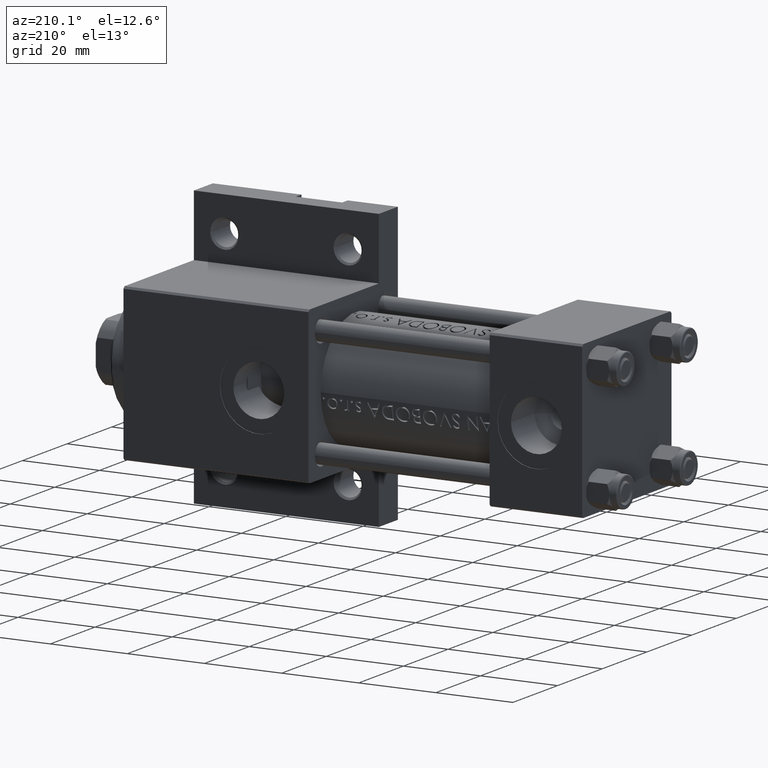
[diagram: clean part render]
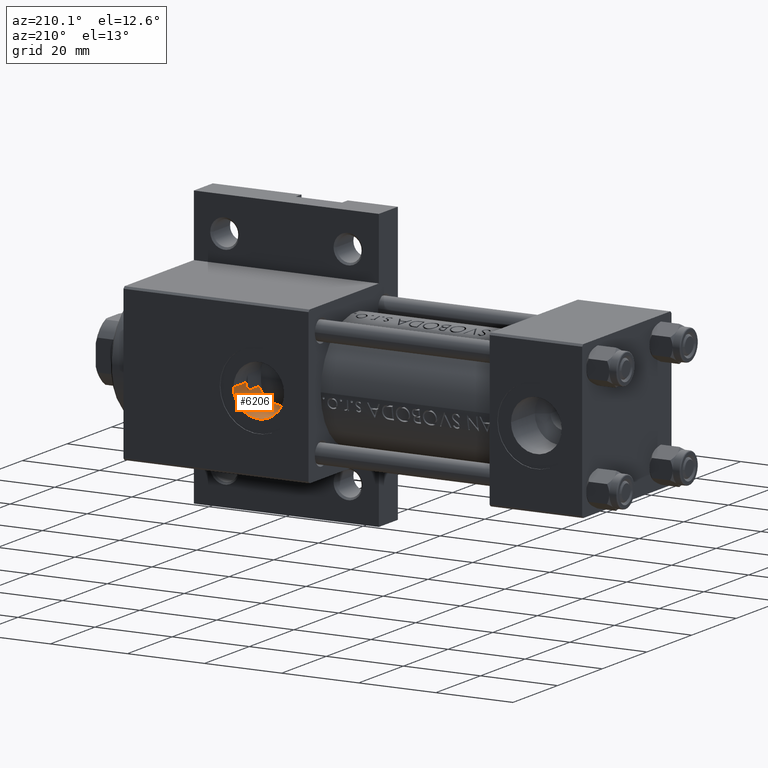
[diagram: same view with one face highlighted and labeled with its STEP entity id]
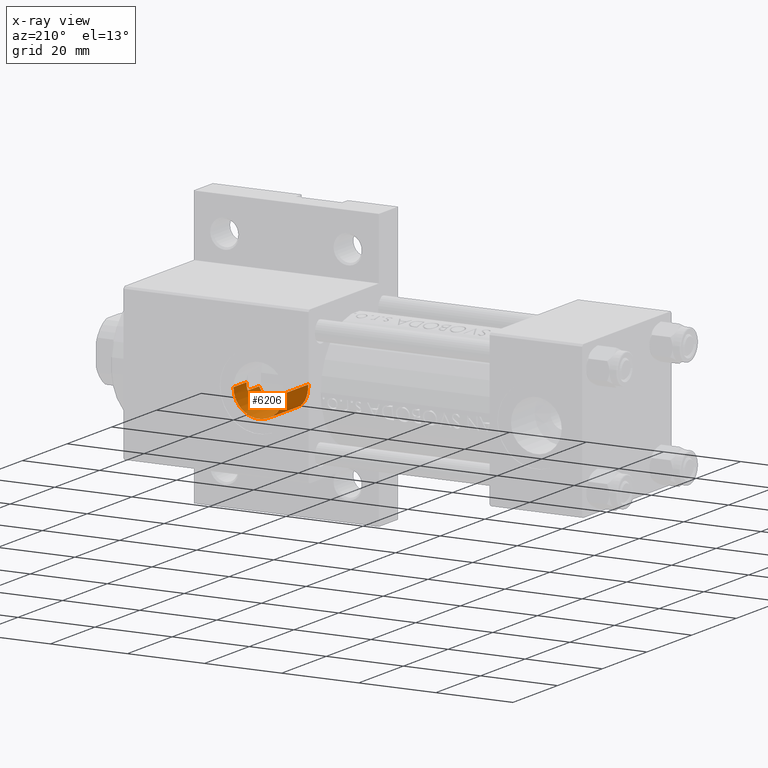
[diagram: x-ray of the same camera — body ghosted, the highlighted face saturated]
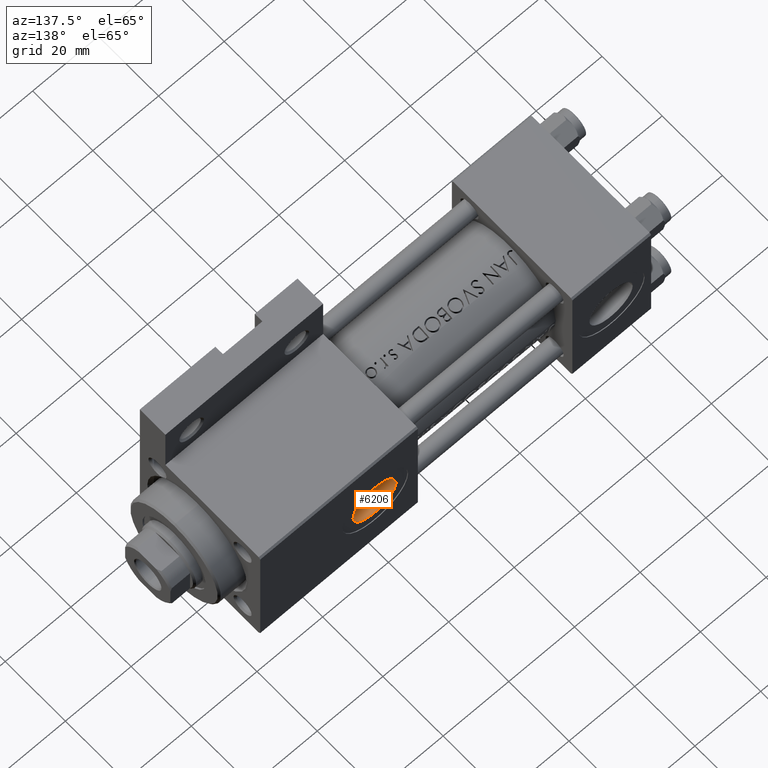
[diagram: same view with one face highlighted and labeled with its STEP entity id]
A machine part, auxiliary view. The second image highlights one B-rep face of the part: STEP entity #6206.
The next image is the same camera in x-ray: the body ghosted, the highlighted face saturated — about 0% of this face is hidden behind the body in this view.
A second angle (auxiliary view) of the same face is appended — the face is thin or edge-on in the first view.
In plain terms, the highlighted cylindrical surface (edge-blend (fillet) strip) has radius 6.58 mm, axis along (0, 1, 0).
Its self-contained STEP definition (entity closure, byte-faithful):
#124 = VERTEX_POINT ( 'NONE', #36950 ) ;
#1658 = VERTEX_POINT ( 'NONE', #41858 ) ;
#2013 = CARTESIAN_POINT ( 'NONE',  ( 86.92434068310684836, 5.907044672534585317, 7.071096920454997381 ) ) ;
#2209 = EDGE_CURVE ( 'NONE', #27909, #8641, #10185, .T. ) ;
#2496 = CARTESIAN_POINT ( 'NONE',  ( 81.15150766959025930, 5.943877247083118931, 7.044991576418467183 ) ) ;
#2721 = CARTESIAN_POINT ( 'NONE',  ( 89.01171256368644435, 4.281038711601305558, 8.043476487246559614 ) ) ;
#2968 = CARTESIAN_POINT ( 'NONE',  ( 77.45763783829498550, 0.8084208477571722673, 8.975121118623743399 ) ) ;
#3492 = DIRECTION ( 'NONE',  ( -0.000000000000000000, -0.000000000000000000, 1.000000000000000000 ) ) ;
#3887 = EDGE_CURVE ( 'NONE', #27909, #1658, #31897, .T. ) ;
#3893 = VECTOR ( 'NONE', #3492, 1000.000000000000000 ) ;
#4695 = CARTESIAN_POINT ( 'NONE',  ( 77.41999999999846693, 1.223796959402451711E-15, 8.999999999999998224 ) ) ;
#5130 = CARTESIAN_POINT ( 'NONE',  ( 84.00000000000000000, -1.734723475976806897E-15, 19.80000000000000071 ) ) ;
#5454 = LINE ( 'NONE', #19150, #31253 ) ;
#5610 = CARTESIAN_POINT ( 'NONE',  ( 78.91948560029507576, 4.185857250486424874, 8.083179932574976689 ) ) ;
#5839 = CARTESIAN_POINT ( 'NONE',  ( 82.64228046384748438, 6.441510615516905069, 6.649229527461431033 ) ) ;
#6085 = CARTESIAN_POINT ( 'NONE',  ( 85.64143006621840470, 6.375121249720387517, 6.704616833470071313 ) ) ;
#6206 = ADVANCED_FACE ( 'NONE', ( #27950 ), #9643, .F. ) ;
#6548 = CARTESIAN_POINT ( 'NONE',  ( 77.61241581301698034, 1.592248641449762525, 8.874366003595781649 ) ) ;
#7648 = CARTESIAN_POINT ( 'NONE',  ( 90.39284622331669539, 1.591040247564621257, 13.91861279833453935 ) ) ;
#7909 = EDGE_LOOP ( 'NONE', ( #8067, #28945, #16821, #26670, #23920, #25478 ) ) ;
#8067 = ORIENTED_EDGE ( 'NONE', *, *, #18791, .F. ) ;
#8115 = VERTEX_POINT ( 'NONE', #23155 ) ;
#8641 = VERTEX_POINT ( 'NONE', #4695 ) ;
#8961 = CIRCLE ( 'NONE', #32018, 6.580000000001542837 ) ;
#9643 = CYLINDRICAL_SURFACE ( 'NONE', #42242, 6.580000000001542837 ) ;
#9671 = CARTESIAN_POINT ( 'NONE',  ( 84.65744280686335799, 6.559709605006784017, 6.547889352008899877 ) ) ;
#10152 = CARTESIAN_POINT ( 'NONE',  ( 88.75695250607546427, 4.561896889324864368, 7.903678834413632615 ) ) ;
#10185 = B_SPLINE_CURVE_WITH_KNOTS ( 'NONE', 3,
 ( #43111, #13754, #24110, #46715, #46250, #2721, #10152, #38565, #27977, #23878, #39278, #20963, #2013, #38790, #13993, #42637, #6085, #28693, #9671, #16647, #42876, #46960, #35436, #27746, #5839, #24830, #35661, #31367, #2496, #46012, #17131, #46479, #17353, #5610, #42416, #13516, #28208, #32064, #28451, #39513, #21199, #6548, #35899, #2968, #22167, #39754 ),
 .UNSPECIFIED., .F., .F.,
 ( 4, 2, 2, 2, 2, 2, 2, 2, 2, 2, 2, 2, 2, 2, 2, 2, 2, 2, 2, 2, 2, 2, 4 ),
 ( 0.000000000000000000, 0.001207791230099373309, 0.002415582460198746617, 0.003623373690298120793, 0.004227269305347793570, 0.004831164920397465479, 0.006038956150496808430, 0.006642851765546497686, 0.007246747380596187810, 0.008454538610695606221, 0.009058434225745337978, 0.009662329840795068001, 0.01026622545584479802, 0.01087012107089452631, 0.01207791230099398809, 0.01328570353109344640, 0.01449349476119290471, 0.01509739037624264861, 0.01570128599129239078, 0.01690907722139185429, 0.01751297283644158778, 0.01811686845149132127, 0.01932465968159078479 ),
 .UNSPECIFIED. ) ;
#12774 = B_SPLINE_CURVE_WITH_KNOTS ( 'NONE', 3,
 ( #29325, #14622, #28832, #39902, #7648, #43968 ),
 .UNSPECIFIED., .F., .F.,
 ( 4, 2, 4 ),
 ( 0.001923267627926022365, 0.002881828648815652587, 0.003840389669705283025 ),
 .UNSPECIFIED. ) ;
#12880 = CARTESIAN_POINT ( 'NONE',  ( 90.30000000000001137, 1.899052395280416805, -18.61105048083429025 ) ) ;
#13516 = CARTESIAN_POINT ( 'NONE',  ( 78.57242859662288481, 3.724876030303978514, 8.281895439158068584 ) ) ;
#13754 = CARTESIAN_POINT ( 'NONE',  ( 90.18384735178129574, 2.284382302762959505, 8.743491762341795592 ) ) ;
#13993 = CARTESIAN_POINT ( 'NONE',  ( 86.21002104074251804, 6.200884946022786615, 6.845702732414582492 ) ) ;
#14451 = DIRECTION ( 'NONE',  ( 1.000000000000000000, 0.000000000000000000, 0.000000000000000000 ) ) ;
#14622 = CARTESIAN_POINT ( 'NONE',  ( 90.58000000000156149, 0.3230844264541329891, 13.99999999999999467 ) ) ;
#14840 = CARTESIAN_POINT ( 'NONE',  ( 90.58000000000154728, -1.734723475976806897E-15, 19.80000000000000071 ) ) ;
#15236 = CARTESIAN_POINT ( 'NONE',  ( 77.41999999999846693, -9.289058821376597120E-16, -18.61105048083429025 ) ) ;
#15929 = DIRECTION ( 'NONE',  ( 0.000000000000000000, 0.000000000000000000, 1.000000000000000000 ) ) ;
#16647 = CARTESIAN_POINT ( 'NONE',  ( 84.04743762832035259, 6.582974628388991611, 6.527585999843090292 ) ) ;
#16821 = ORIENTED_EDGE ( 'NONE', *, *, #3887, .T. ) ;
#16961 = DIRECTION ( 'NONE',  ( -0.000000000000000000, -0.000000000000000000, 1.000000000000000000 ) ) ;
#17131 = CARTESIAN_POINT ( 'NONE',  ( 80.16020215073049826, 5.356874842517147073, 7.448716332623804171 ) ) ;
#17353 = CARTESIAN_POINT ( 'NONE',  ( 79.29730408322325275, 4.618177244596265218, 7.875509752877484004 ) ) ;
#17556 = VECTOR ( 'NONE', #16961, 1000.000000000000000 ) ;
#18791 = EDGE_CURVE ( 'NONE', #8641, #124, #25840, .T. ) ;
#19150 = CARTESIAN_POINT ( 'NONE',  ( 90.58000000000154728, -1.734723475976806897E-15, -18.61105048083429025 ) ) ;
#20963 = CARTESIAN_POINT ( 'NONE',  ( 87.26053252520591741, 5.728070196491263921, 7.200680661955370709 ) ) ;
#21199 = CARTESIAN_POINT ( 'NONE',  ( 77.72104259078042787, 1.977670684214428931, 8.804446867313096448 ) ) ;
#21470 = EDGE_CURVE ( 'NONE', #8115, #1658, #12774, .T. ) ;
#22167 = CARTESIAN_POINT ( 'NONE',  ( 77.41999999999849535, 0.4081853129699607452, 9.000000000000007105 ) ) ;
#23155 = CARTESIAN_POINT ( 'NONE',  ( 90.58000000000154728, 1.837042777381032933E-15, 13.99999999999999822 ) ) ;
#23878 = CARTESIAN_POINT ( 'NONE',  ( 87.89699318866290412, 5.305288046703259930, 7.477775428654021894 ) ) ;
#23920 = ORIENTED_EDGE ( 'NONE', *, *, #37362, .T. ) ;
#24110 = CARTESIAN_POINT ( 'NONE',  ( 90.03601729897110317, 2.648259396322889092, 8.649752199410301046 ) ) ;
#24321 = CARTESIAN_POINT ( 'NONE',  ( 84.00000000000000000, -1.734723475976806897E-15, -18.61105048083429025 ) ) ;
#24830 = CARTESIAN_POINT ( 'NONE',  ( 82.25327158685064433, 6.347078162380213939, 6.727766182684421281 ) ) ;
#25478 = ORIENTED_EDGE ( 'NONE', *, *, #32366, .T. ) ;
#25840 = LINE ( 'NONE', #15236, #3893 ) ;
#26530 = CARTESIAN_POINT ( 'NONE',  ( 90.30000000000001137, 1.899052395280416805, 8.818024241158688881 ) ) ;
#26670 = ORIENTED_EDGE ( 'NONE', *, *, #21470, .F. ) ;
#27746 = CARTESIAN_POINT ( 'NONE',  ( 82.83871781191029982, 6.479820246555589414, 6.616654439233108143 ) ) ;
#27909 = VERTEX_POINT ( 'NONE', #26530 ) ;
#27950 = FACE_OUTER_BOUND ( 'NONE', #7909, .T. ) ;
#27977 = CARTESIAN_POINT ( 'NONE',  ( 88.19718467613773782, 5.071121963172627645, 7.619888602053427107 ) ) ;
#28208 = CARTESIAN_POINT ( 'NONE',  ( 78.46622740148210084, 3.565203004854786695, 8.344512687240582594 ) ) ;
#28451 = CARTESIAN_POINT ( 'NONE',  ( 77.99714712711040931, 2.723766581249589258, 8.629423614267251352 ) ) ;
#28693 = CARTESIAN_POINT ( 'NONE',  ( 85.05563542025691959, 6.507095227759204903, 6.594134426896895995 ) ) ;
#28832 = CARTESIAN_POINT ( 'NONE',  ( 90.55605924908761040, 0.6456608678150242975, 13.98945420583744870 ) ) ;
#28945 = ORIENTED_EDGE ( 'NONE', *, *, #2209, .F. ) ;
#29325 = CARTESIAN_POINT ( 'NONE',  ( 90.58000000000154728, 1.837042777381032933E-15, 13.99999999999999822 ) ) ;
#29936 = DIRECTION ( 'NONE',  ( 1.000000000000000000, 0.000000000000000000, 0.000000000000000000 ) ) ;
#31253 = VECTOR ( 'NONE', #33873, 1000.000000000000000 ) ;
#31367 = CARTESIAN_POINT ( 'NONE',  ( 81.50365122394813966, 6.100731835174563855, 6.925108619061486337 ) ) ;
#31897 = LINE ( 'NONE', #12880, #17556 ) ;
#32018 = AXIS2_PLACEMENT_3D ( 'NONE', #5130, #15929, #29936 ) ;
#32064 = CARTESIAN_POINT ( 'NONE',  ( 78.16834223545102134, 3.071777053897144949, 8.522948337697432208 ) ) ;
#32366 = EDGE_CURVE ( 'NONE', #41550, #124, #8961, .T. ) ;
#33873 = DIRECTION ( 'NONE',  ( -0.000000000000000000, -0.000000000000000000, 1.000000000000000000 ) ) ;
#35436 = CARTESIAN_POINT ( 'NONE',  ( 83.23563096081821300, 6.538530929802687020, 6.566314066596410370 ) ) ;
#35661 = CARTESIAN_POINT ( 'NONE',  ( 82.06128195139865511, 6.290973204691352905, 6.773687993804111684 ) ) ;
#35899 = CARTESIAN_POINT ( 'NONE',  ( 77.56705469300287348, 1.397686090543302395, 8.903818455115034780 ) ) ;
#36950 = CARTESIAN_POINT ( 'NONE',  ( 77.41999999999846693, -9.289058821376599092E-16, 19.80000000000000071 ) ) ;
#37362 = EDGE_CURVE ( 'NONE', #8115, #41550, #5454, .T. ) ;
#38565 = CARTESIAN_POINT ( 'NONE',  ( 88.34134544482053286, 4.948221379670042275, 7.691185487698473544 ) ) ;
#38790 = CARTESIAN_POINT ( 'NONE',  ( 86.39211994537743067, 6.132805105780790633, 6.899218132206713427 ) ) ;
#39016 = DIRECTION ( 'NONE',  ( -0.000000000000000000, -0.000000000000000000, 1.000000000000000000 ) ) ;
#39278 = CARTESIAN_POINT ( 'NONE',  ( 87.74050804270864035, 5.416766998257486421, 7.406790300727952747 ) ) ;
#39513 = CARTESIAN_POINT ( 'NONE',  ( 77.78468472322816751, 2.169203254887550170, 8.763745855050723677 ) ) ;
#39754 = CARTESIAN_POINT ( 'NONE',  ( 77.41999999999846693, 1.223796959402451711E-15, 8.999999999999998224 ) ) ;
#39902 = CARTESIAN_POINT ( 'NONE',  ( 90.46247493449395449, 1.278752734038844485, 13.94875937294843560 ) ) ;
#41550 = VERTEX_POINT ( 'NONE', #14840 ) ;
#41858 = CARTESIAN_POINT ( 'NONE',  ( 90.30000000000001137, 1.899052395280416805, 13.87930105885285492 ) ) ;
#42242 = AXIS2_PLACEMENT_3D ( 'NONE', #24321, #39016, #14451 ) ;
#42416 = CARTESIAN_POINT ( 'NONE',  ( 78.79875737437666317, 4.034886358906384807, 8.151392050136834655 ) ) ;
#42637 = CARTESIAN_POINT ( 'NONE',  ( 85.83530013697878758, 6.321933289868082007, 6.748495657718816432 ) ) ;
#42876 = CARTESIAN_POINT ( 'NONE',  ( 83.84132420776211347, 6.581215419008474399, 6.529131557805248676 ) ) ;
#43111 = CARTESIAN_POINT ( 'NONE',  ( 90.30000000000001137, 1.899052395280416805, 8.818024241158688881 ) ) ;
#43968 = CARTESIAN_POINT ( 'NONE',  ( 90.30000000000001137, 1.899052395280416805, 13.87930105885285492 ) ) ;
#46012 = CARTESIAN_POINT ( 'NONE',  ( 80.48004077057569816, 5.572564248888135729, 7.306509127488537203 ) ) ;
#46250 = CARTESIAN_POINT ( 'NONE',  ( 89.47667727346389199, 3.667500690329276836, 8.309199649381495689 ) ) ;
#46479 = CARTESIAN_POINT ( 'NONE',  ( 79.57031396582577543, 4.880372653833864760, 7.732632965334566677 ) ) ;
#46715 = CARTESIAN_POINT ( 'NONE',  ( 89.68316260257660133, 3.338928794743209139, 8.433056230293077604 ) ) ;
#46960 = CARTESIAN_POINT ( 'NONE',  ( 83.43610688730976221, 6.558932760434254661, 6.548550817887901054 ) ) ;